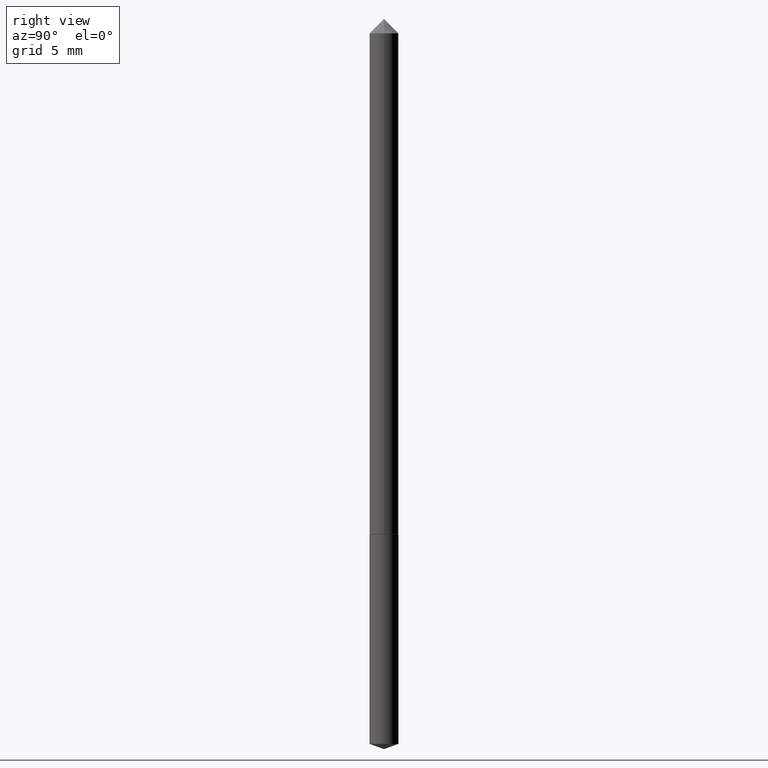
[diagram: clean part render]
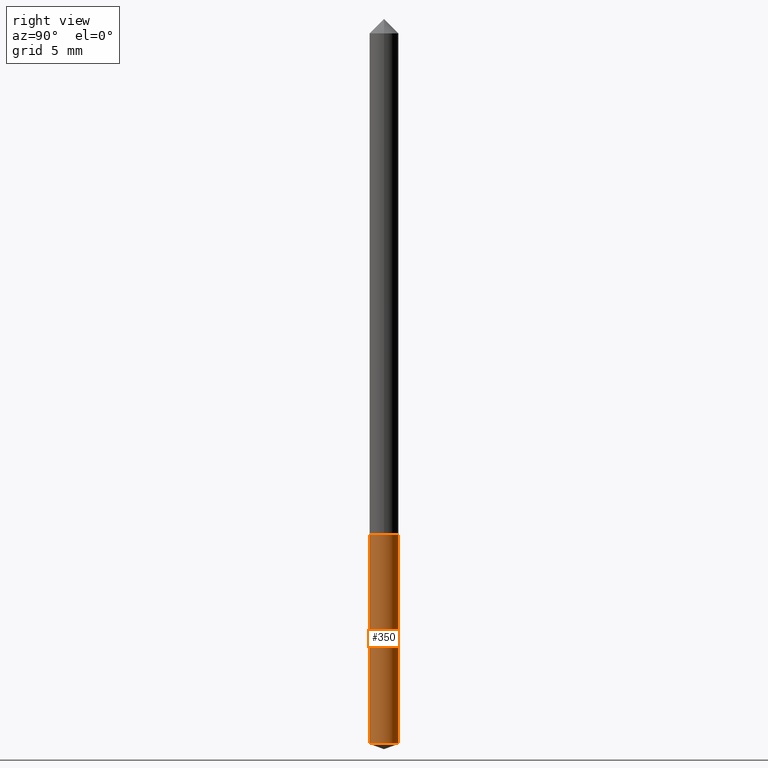
[diagram: same view with one face highlighted and labeled with its STEP entity id]
A machine part, right view. The second image highlights one B-rep face of the part: STEP entity #350.
In plain terms, the highlighted cylindrical surface (edge-blend (fillet) strip) has radius 0.7556 mm, axis along (-0, 0, 1).
Its self-contained STEP definition (entity closure, byte-faithful):
#18 = AXIS2_PLACEMENT_3D ( 'NONE', #81, #30, #231 ) ;
#30 = DIRECTION ( 'NONE',  ( -2.445459552101217247E-29, 3.491494591218027885E-15, 1.000000000000000000 ) ) ;
#37 = ORIENTED_EDGE ( 'NONE', *, *, #224, .F. ) ;
#54 = CARTESIAN_POINT ( 'NONE',  ( -2.077431396611299340E-16, -0.02975000000000519590, -1.489171885530580886 ) ) ;
#69 = CARTESIAN_POINT ( 'NONE',  ( 2.113864638886661574E-16, 0.02974999999999479450, -1.489171885530580886 ) ) ;
#81 = CARTESIAN_POINT ( 'NONE',  ( 2.590974200153152507E-29, -3.699224478504313579E-15, -1.059500000000000108 ) ) ;
#83 = CARTESIAN_POINT ( 'NONE',  ( -2.077431396611405097E-16, -0.02975000000000370057, -1.059499999999999886 ) ) ;
#87 = DIRECTION ( 'NONE',  ( -6.982962677686265922E-15, -1.000000000000000000, 4.591341165822291216E-15 ) ) ;
#92 = CIRCLE ( 'NONE', #164, 0.02974999999999999867 ) ;
#94 = DIRECTION ( 'NONE',  ( -2.445459552101217247E-29, 3.491494591218027885E-15, 1.000000000000000000 ) ) ;
#100 = ORIENTED_EDGE ( 'NONE', *, *, #357, .T. ) ;
#117 = DIRECTION ( 'NONE',  ( -2.445459552101217247E-29, 3.491494591218027885E-15, 1.000000000000000000 ) ) ;
#120 = FACE_OUTER_BOUND ( 'NONE', #270, .T. ) ;
#121 = ORIENTED_EDGE ( 'NONE', *, *, #240, .F. ) ;
#124 = VERTEX_POINT ( 'NONE', #69 ) ;
#147 = LINE ( 'NONE', #344, #330 ) ;
#150 = DIRECTION ( 'NONE',  ( -2.445459552101217247E-29, 3.491494591218027885E-15, 1.000000000000000000 ) ) ;
#154 = ORIENTED_EDGE ( 'NONE', *, *, #211, .T. ) ;
#164 = AXIS2_PLACEMENT_3D ( 'NONE', #205, #117, #198 ) ;
#180 = CIRCLE ( 'NONE', #18, 0.02974999999999999867 ) ;
#184 = CARTESIAN_POINT ( 'NONE',  ( -2.077431396611405097E-16, -0.02975000000000370057, -1.059499999999999886 ) ) ;
#198 = DIRECTION ( 'NONE',  ( -6.982962677686265922E-15, -1.000000000000000000, 0.000000000000000000 ) ) ;
#205 = CARTESIAN_POINT ( 'NONE',  ( 3.641719416893252327E-29, -5.199421542832787783E-15, -1.489171885530580886 ) ) ;
#211 = EDGE_CURVE ( 'NONE', #248, #124, #92, .T. ) ;
#224 = EDGE_CURVE ( 'NONE', #322, #243, #180, .T. ) ;
#231 = DIRECTION ( 'NONE',  ( -6.982962677686265922E-15, -1.000000000000000000, 4.591341165822291216E-15 ) ) ;
#233 = DIRECTION ( 'NONE',  ( -2.445459552101217247E-29, 3.491494591218027885E-15, 1.000000000000000000 ) ) ;
#235 = VECTOR ( 'NONE', #233, 39.37007874015748143 ) ;
#239 = CYLINDRICAL_SURFACE ( 'NONE', #352, 0.02974999999999999867 ) ;
#240 = EDGE_CURVE ( 'NONE', #248, #322, #263, .T. ) ;
#243 = VERTEX_POINT ( 'NONE', #256 ) ;
#248 = VERTEX_POINT ( 'NONE', #54 ) ;
#256 = CARTESIAN_POINT ( 'NONE',  ( 2.113864638886662806E-16, 0.02974999999999630024, -1.059500000000000330 ) ) ;
#263 = LINE ( 'NONE', #83, #235 ) ;
#270 = EDGE_LOOP ( 'NONE', ( #154, #100, #37, #121 ) ) ;
#322 = VERTEX_POINT ( 'NONE', #184 ) ;
#330 = VECTOR ( 'NONE', #94, 39.37007874015748143 ) ;
#341 = CARTESIAN_POINT ( 'NONE',  ( 2.590974200153152507E-29, -3.699224478504313579E-15, -1.059500000000000108 ) ) ;
#344 = CARTESIAN_POINT ( 'NONE',  ( 2.113864638886556803E-16, 0.02974999999999630024, -1.059500000000000330 ) ) ;
#350 = ADVANCED_FACE ( 'NONE', ( #120 ), #239, .T. ) ;
#352 = AXIS2_PLACEMENT_3D ( 'NONE', #341, #150, #87 ) ;
#357 = EDGE_CURVE ( 'NONE', #124, #243, #147, .T. ) ;